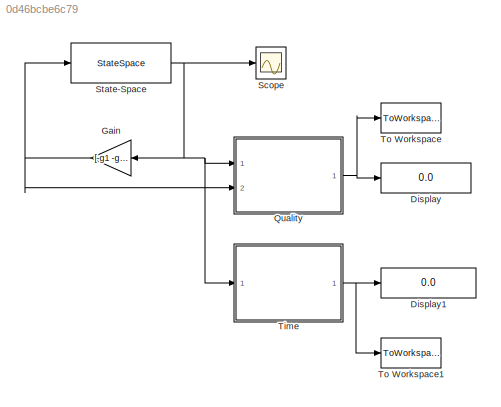
MODEL slx_0d46bcbe6c79
KIND model
CONFIG AbsTol = auto
CONFIG EnableMultiTasking = on
CONFIG FixedStep = auto
CONFIG MaxStep = auto
CONFIG MinStep = auto
CONFIG RelTol = 1e-3
CONFIG SampleTimeConstraint = Unconstrained
CONFIG Solver = ode45
CONFIG SolverName = ode45
CONFIG StartTime = 0.0
CONFIG StopTime = 500
BLOCK [Display] Display
  Decimation = 1
  Ports = [1]
BLOCK [Display] Display1
  Decimation = 1
  Ports = [1]
BLOCK [Gain] Gain
  Gain = [-g1 -g2]
  Multiplication = Matrix(K*u)
  OutDataTypeStr = Inherit: Inherit via internal rule
  ParamDataTypeStr = Inherit: Inherit via internal rule
  SaturateOnIntegerOverflow = off
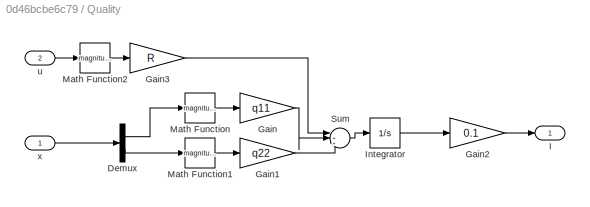
BLOCK [SubSystem] Quality
  Ports = [2, 1]
  RequestExecContextInheritance = off
BLOCK [Demux] Quality/Demux
  DisplayOption = bar
  Outputs = 2
  Ports = [1, 2]
BLOCK [Gain] Quality/Gain
  Gain = q11
  OutDataTypeStr = Inherit: Inherit via internal rule
  ParamDataTypeStr = Inherit: Inherit via internal rule
  SaturateOnIntegerOverflow = off
BLOCK [Gain] Quality/Gain1
  Gain = q22
  OutDataTypeStr = Inherit: Inherit via internal rule
  ParamDataTypeStr = Inherit: Inherit via internal rule
  SaturateOnIntegerOverflow = off
BLOCK [Gain] Quality/Gain2
  Gain = 0.1
  OutDataTypeStr = Inherit: Inherit via internal rule
  ParamDataTypeStr = Inherit: Inherit via internal rule
  SaturateOnIntegerOverflow = off
BLOCK [Gain] Quality/Gain3
  Gain = R
  OutDataTypeStr = Inherit: Inherit via internal rule
  ParamDataTypeStr = Inherit: Inherit via internal rule
  SaturateOnIntegerOverflow = off
BLOCK [Outport] Quality/I
  IconDisplay = Port number
BLOCK [Integrator] Quality/Integrator
  Ports = [1, 1]
BLOCK [Math] Quality/Math Function
  Operator = magnitude^2
  Ports = [1, 1]
BLOCK [Math] Quality/Math Function1
  Operator = magnitude^2
  Ports = [1, 1]
BLOCK [Math] Quality/Math Function2
  Operator = magnitude^2
  Ports = [1, 1]
BLOCK [Sum] Quality/Sum
  IconShape = round
  InputSameDT = off
  Inputs = |+++
  OutDataTypeStr = Inherit: Inherit via internal rule
  Ports = [3, 1]
  SaturateOnIntegerOverflow = off
BLOCK [Inport] Quality/u
  IconDisplay = Port number
  Port = 2
BLOCK [Inport] Quality/x
  IconDisplay = Port number
BLOCK [Scope] Scope
  Floating = off
  NumInputPorts = 1
  Ports = [1]
  ScopeSpecificationString = C++SS(StrPVP('Location','[10, 69, 1376, 747]'),StrPVP('Open','off'),MxPVP('AxesTitles',53,'struct(''axes1'',''%<SignalLabel>'')'),MxPVP('ScopeGraphics',56,'struct(''FigureColor'',''[0.5 0.5 0.5]'',''AxesColor'',''[0 0 0]'',''AxesTickColor'',''[1 1 1]'',''LineColors'',''[1 1 0;1 0 1;0 1 1;1 0 0;0 1 0;0 0 1]'',''LineStyles'',''-|-|-|-|-|-'',''LineWidths'',''[0.5 0.5 0.5 0.5 0.5 0.5]'',''MarkerStyles...<+191ch>
BLOCK [StateSpace] State-Space
  A = A
  B = B
  C = eye(2)
  D = [0;0]
  InitialCondition = [1;1]
  Ports = [1, 1]
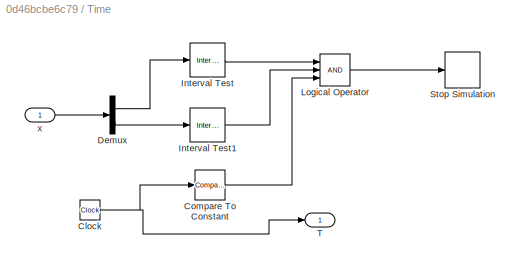
BLOCK [SubSystem] Time 
  Ports = [1, 1]
  RequestExecContextInheritance = off
BLOCK [Clock] Time /Clock
  Decimation = 10000
BLOCK [Reference] Time /Compare To Constant  REF=simulink/Logic and Bit
Operations/Compare
To Constant
  Ports = [1, 1]
  SourceBlock = simulink/Logic and Bit\nOperations/Compare\nTo Constant
  SourceProductBaseCode = SL
  SourceProductName = Simulink
  SourceType = Compare To Constant
BLOCK [Demux] Time /Demux
  DisplayOption = bar
  Outputs = 2
  Ports = [1, 2]
BLOCK [Reference] Time /Interval Test  REF=simulink/Logic and Bit
Operations/Interval Test
  Ports = [1, 1]
  SourceBlock = simulink/Logic and Bit\nOperations/Interval Test
  SourceProductBaseCode = SL
  SourceProductName = Simulink
  SourceType = Interval Test
BLOCK [Reference] Time /Interval Test1  REF=simulink/Logic and Bit
Operations/Interval Test
  Ports = [1, 1]
  SourceBlock = simulink/Logic and Bit\nOperations/Interval Test
  SourceProductBaseCode = SL
  SourceProductName = Simulink
  SourceType = Interval Test
BLOCK [Logic] Time /Logical Operator
  AllPortsSameDT = off
  Inputs = 3
  OutDataTypeStr = boolean
  Ports = [3, 1]
BLOCK [Stop] Time /Stop Simulation
BLOCK [Outport] Time /T
  IconDisplay = Port number
BLOCK [Inport] Time /x
  IconDisplay = Port number
BLOCK [ToWorkspace] To Workspace
  FixptAsFi = on
  MaxDataPoints = inf
  Ports = [1]
  SampleTime = -1
  SaveFormat = Timeseries
  VariableName = J
BLOCK [ToWorkspace] To Workspace1
  FixptAsFi = on
  MaxDataPoints = inf
  Ports = [1]
  SampleTime = -1
  SaveFormat = Timeseries
  VariableName = T
NET Gain:1 -> Quality:2, State-Space:1
LINE Quality/Demux:1 -> Quality/Math Function:1
LINE Quality/Demux:2 -> Quality/Math Function1:1
LINE Quality/Gain1:1 -> Quality/Sum:3
LINE Quality/Gain2:1 -> Quality/I:1
LINE Quality/Gain3:1 -> Quality/Sum:1
LINE Quality/Gain:1 -> Quality/Sum:2
LINE Quality/Integrator:1 -> Quality/Gain2:1
LINE Quality/Math Function1:1 -> Quality/Gain1:1
LINE Quality/Math Function2:1 -> Quality/Gain3:1
LINE Quality/Math Function:1 -> Quality/Gain:1
LINE Quality/Sum:1 -> Quality/Integrator:1
LINE Quality/u:1 -> Quality/Math Function2:1
LINE Quality/x:1 -> Quality/Demux:1
NET Quality:1 -> Display:1, To Workspace:1
NET State-Space:1 -> Gain:1, Quality:1, Scope:1, Time :1
NET Time /Clock:1 -> Time /Compare To Constant:1, Time /T:1
LINE Time /Compare To Constant:1 -> Time /Logical Operator:3
LINE Time /Demux:1 -> Time /Interval Test:1
LINE Time /Demux:2 -> Time /Interval Test1:1
LINE Time /Interval Test1:1 -> Time /Logical Operator:2
LINE Time /Interval Test:1 -> Time /Logical Operator:1
LINE Time /Logical Operator:1 -> Time /Stop Simulation:1
LINE Time /x:1 -> Time /Demux:1
NET Time :1 -> Display1:1, To Workspace1:1
note: NET lines group one-source signal fan-out (src -> all destinations, sorted); 1:1 wires keep LINE
